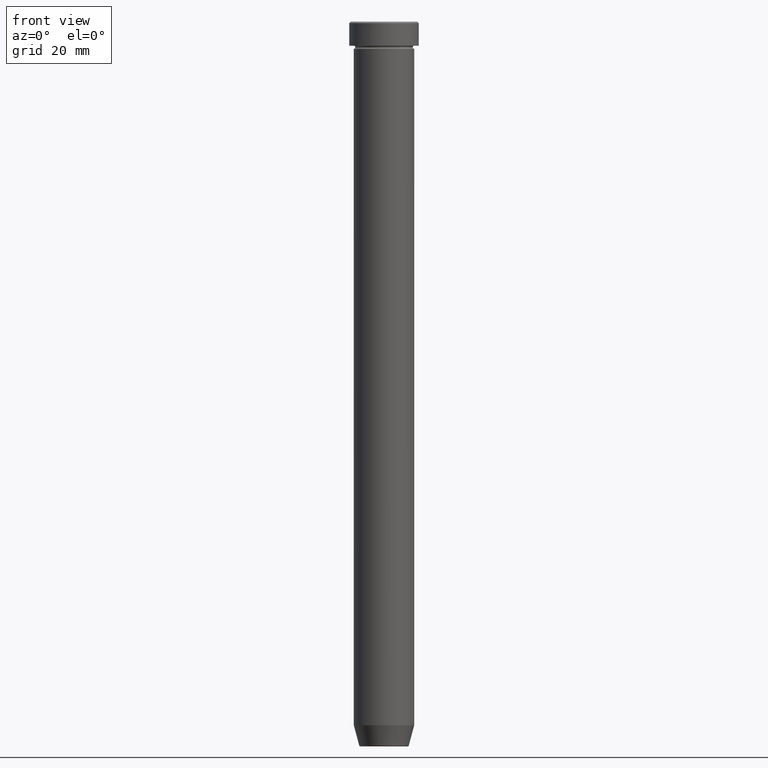
[diagram: clean part render]
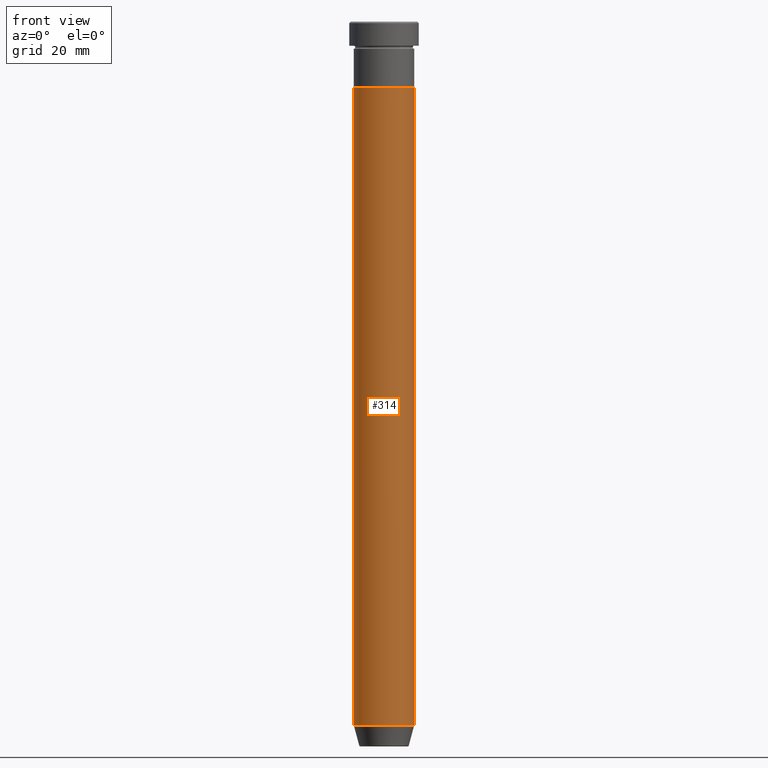
[diagram: same view with one face highlighted and labeled with its STEP entity id]
A machine part, front view. The second image highlights one B-rep face of the part: STEP entity #314.
In plain terms, the highlighted cylindrical surface (edge-blend (fillet) strip) has radius 10 mm, axis along (-0, -0, 1).
Its self-contained STEP definition (entity closure, byte-faithful):
#5 = ORIENTED_EDGE ( 'NONE', *, *, #238, .T. ) ;
#22 = DIRECTION ( 'NONE',  ( 1.000000000000000000, 0.000000000000000000, 0.000000000000000000 ) ) ;
#27 = CIRCLE ( 'NONE', #134, 10.00000000000000000 ) ;
#58 = CYLINDRICAL_SURFACE ( 'NONE', #172, 9.999999999999998224 ) ;
#72 = DIRECTION ( 'NONE',  ( -0.000000000000000000, -0.000000000000000000, 1.000000000000000000 ) ) ;
#122 = CARTESIAN_POINT ( 'NONE',  ( 0.000000000000000000, 0.000000000000000000, -22.00000000000000000 ) ) ;
#134 = AXIS2_PLACEMENT_3D ( 'NONE', #122, #171, #22 ) ;
#158 = DIRECTION ( 'NONE',  ( -0.000000000000000000, -0.000000000000000000, 1.000000000000000000 ) ) ;
#171 = DIRECTION ( 'NONE',  ( -0.000000000000000000, -0.000000000000000000, 1.000000000000000000 ) ) ;
#172 = AXIS2_PLACEMENT_3D ( 'NONE', #560, #244, #284 ) ;
#187 = CARTESIAN_POINT ( 'NONE',  ( 9.999999999999998224, 0.000000000000000000, -232.9999999999999716 ) ) ;
#188 = CIRCLE ( 'NONE', #531, 9.999999999999998224 ) ;
#204 = CARTESIAN_POINT ( 'NONE',  ( 10.00000000000000000, 0.000000000000000000, -22.00000000000000000 ) ) ;
#209 = EDGE_LOOP ( 'NONE', ( #401, #5, #461, #394 ) ) ;
#214 = VERTEX_POINT ( 'NONE', #589 ) ;
#216 = VERTEX_POINT ( 'NONE', #187 ) ;
#238 = EDGE_CURVE ( 'NONE', #214, #216, #188, .T. ) ;
#244 = DIRECTION ( 'NONE',  ( -0.000000000000000000, -0.000000000000000000, 1.000000000000000000 ) ) ;
#281 = EDGE_CURVE ( 'NONE', #216, #391, #562, .T. ) ;
#284 = DIRECTION ( 'NONE',  ( 1.000000000000000000, 0.000000000000000000, 0.000000000000000000 ) ) ;
#303 = LINE ( 'NONE', #446, #475 ) ;
#304 = VERTEX_POINT ( 'NONE', #390 ) ;
#314 = ADVANCED_FACE ( 'NONE', ( #428 ), #58, .T. ) ;
#318 = CARTESIAN_POINT ( 'NONE',  ( 0.000000000000000000, 0.000000000000000000, -232.9999999999999716 ) ) ;
#390 = CARTESIAN_POINT ( 'NONE',  ( -10.00000000000000000, 1.224646799147353256E-15, -22.00000000000000000 ) ) ;
#391 = VERTEX_POINT ( 'NONE', #204 ) ;
#394 = ORIENTED_EDGE ( 'NONE', *, *, #435, .F. ) ;
#401 = ORIENTED_EDGE ( 'NONE', *, *, #483, .F. ) ;
#428 = FACE_OUTER_BOUND ( 'NONE', #209, .T. ) ;
#435 = EDGE_CURVE ( 'NONE', #304, #391, #27, .T. ) ;
#446 = CARTESIAN_POINT ( 'NONE',  ( -9.999999999999998224, 1.224646799147353059E-15, 0.000000000000000000 ) ) ;
#461 = ORIENTED_EDGE ( 'NONE', *, *, #281, .T. ) ;
#475 = VECTOR ( 'NONE', #72, 1000.000000000000000 ) ;
#483 = EDGE_CURVE ( 'NONE', #214, #304, #303, .T. ) ;
#516 = CARTESIAN_POINT ( 'NONE',  ( 9.999999999999998224, 0.000000000000000000, 0.000000000000000000 ) ) ;
#531 = AXIS2_PLACEMENT_3D ( 'NONE', #318, #592, #551 ) ;
#540 = VECTOR ( 'NONE', #158, 1000.000000000000000 ) ;
#551 = DIRECTION ( 'NONE',  ( 1.000000000000000000, 0.000000000000000000, 0.000000000000000000 ) ) ;
#560 = CARTESIAN_POINT ( 'NONE',  ( 0.000000000000000000, 0.000000000000000000, 0.000000000000000000 ) ) ;
#562 = LINE ( 'NONE', #516, #540 ) ;
#589 = CARTESIAN_POINT ( 'NONE',  ( -9.999999999999998224, 1.224646799147353059E-15, -232.9999999999999716 ) ) ;
#592 = DIRECTION ( 'NONE',  ( -0.000000000000000000, -0.000000000000000000, 1.000000000000000000 ) ) ;